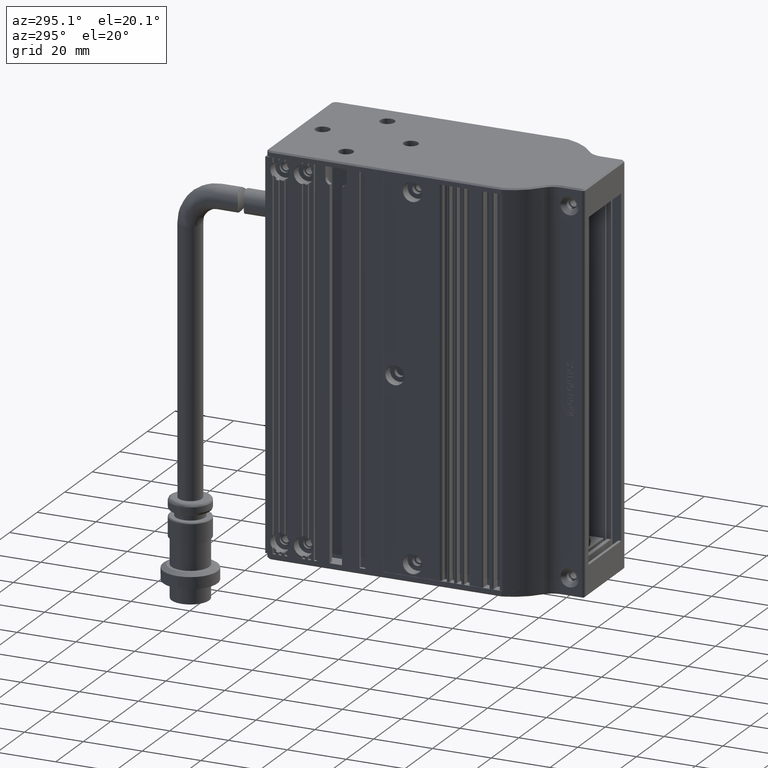
[diagram: clean part render]
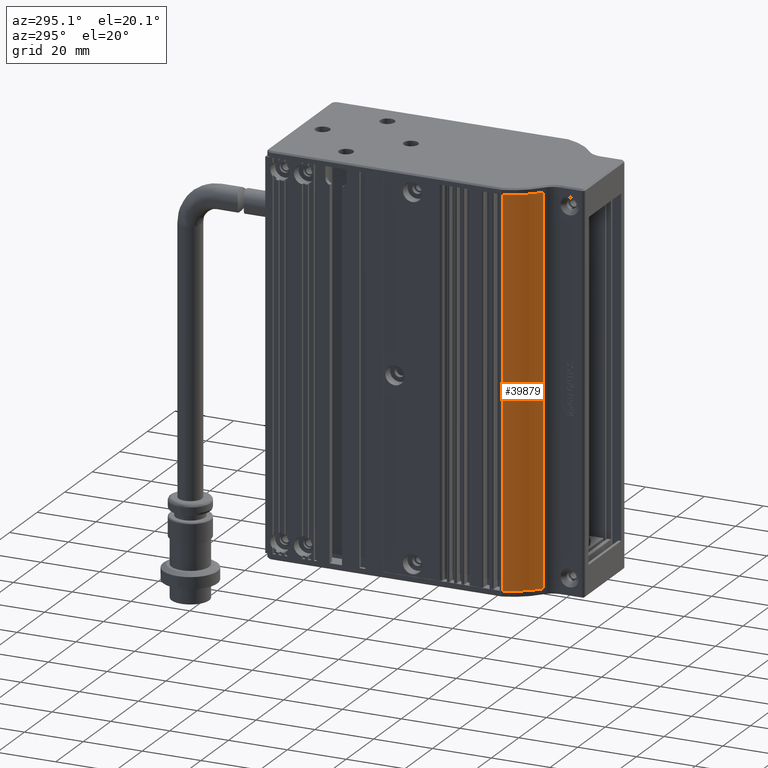
[diagram: same view with one face highlighted and labeled with its STEP entity id]
A machine part, auxiliary view. The second image highlights one B-rep face of the part: STEP entity #39879.
In plain terms, the highlighted cylindrical surface (partial cylindrical patch) has radius 20 mm, axis along (-0, -0, -1).
Its self-contained STEP definition (entity closure, byte-faithful):
#1405 = CARTESIAN_POINT ( 'NONE',  ( -61.96201180637543600, -36.56709289963590200, -65.00000000000000000 ) ) ;
#1498 = CARTESIAN_POINT ( 'NONE',  ( -42.68196710449178300, -31.24921021069212300, 65.00000000000000000 ) ) ;
#2821 = AXIS2_PLACEMENT_3D ( 'NONE', #23934, #23470, #68449 ) ;
#3785 = FACE_OUTER_BOUND ( 'NONE', #8132, .T. ) ;
#5009 = AXIS2_PLACEMENT_3D ( 'NONE', #1498, #40595, #29196 ) ;
#8132 = EDGE_LOOP ( 'NONE', ( #69304, #50638, #49167, #47361 ) ) ;
#8777 = VECTOR ( 'NONE', #43814, 1000.000000000000000 ) ;
#9837 = CARTESIAN_POINT ( 'NONE',  ( -42.68196710449178300, -31.24921021069212300, 65.00000000000000000 ) ) ;
#10083 = CARTESIAN_POINT ( 'NONE',  ( -54.82046302901767400, -47.14439554117092300, 65.00000000000000000 ) ) ;
#10410 = VERTEX_POINT ( 'NONE', #1405 ) ;
#15097 = CARTESIAN_POINT ( 'NONE',  ( -54.82046302901767400, -47.14439554117092300, 65.00000000000000000 ) ) ;
#17435 = EDGE_CURVE ( 'NONE', #10410, #71930, #26810, .T. ) ;
#20996 = DIRECTION ( 'NONE',  ( 0.0000000000000000000, 0.0000000000000000000, 1.000000000000000000 ) ) ;
#23470 = DIRECTION ( 'NONE',  ( 0.0000000000000000000, 0.0000000000000000000, 1.000000000000000000 ) ) ;
#23934 = CARTESIAN_POINT ( 'NONE',  ( -42.68196710449178300, -31.24921021069212300, -65.00000000000000000 ) ) ;
#26810 = CIRCLE ( 'NONE', #2821, 19.99999999999999600 ) ;
#29196 = DIRECTION ( 'NONE',  ( -1.000000000000000000, 0.0000000000000000000, 0.0000000000000000000 ) ) ;
#32638 = EDGE_CURVE ( 'NONE', #47391, #64406, #59604, .T. ) ;
#32910 = VECTOR ( 'NONE', #20996, 1000.000000000000000 ) ;
#37551 = DIRECTION ( 'NONE',  ( -1.000000000000000000, 0.0000000000000000000, 0.0000000000000000000 ) ) ;
#39879 = ADVANCED_FACE ( 'NONE', ( #3785 ), #46339, .T. ) ;
#40595 = DIRECTION ( 'NONE',  ( -0.0000000000000000000, -0.0000000000000000000, -1.000000000000000000 ) ) ;
#43814 = DIRECTION ( 'NONE',  ( -0.0000000000000000000, -0.0000000000000000000, -1.000000000000000000 ) ) ;
#46339 = CYLINDRICAL_SURFACE ( 'NONE', #5009, 19.99999999999999600 ) ;
#47361 = ORIENTED_EDGE ( 'NONE', *, *, #63350, .T. ) ;
#47391 = VERTEX_POINT ( 'NONE', #70390 ) ;
#48487 = AXIS2_PLACEMENT_3D ( 'NONE', #9837, #71809, #37551 ) ;
#48700 = LINE ( 'NONE', #50337, #8777 ) ;
#49167 = ORIENTED_EDGE ( 'NONE', *, *, #17435, .T. ) ;
#50337 = CARTESIAN_POINT ( 'NONE',  ( -61.96201180637543600, -36.56709289963590900, 65.00000000000000000 ) ) ;
#50638 = ORIENTED_EDGE ( 'NONE', *, *, #57932, .T. ) ;
#57932 = EDGE_CURVE ( 'NONE', #47391, #10410, #48700, .T. ) ;
#59604 = CIRCLE ( 'NONE', #48487, 19.99999999999999600 ) ;
#63350 = EDGE_CURVE ( 'NONE', #71930, #64406, #65032, .T. ) ;
#64406 = VERTEX_POINT ( 'NONE', #15097 ) ;
#65032 = LINE ( 'NONE', #10083, #32910 ) ;
#68449 = DIRECTION ( 'NONE',  ( -1.000000000000000000, 0.0000000000000000000, 0.0000000000000000000 ) ) ;
#69304 = ORIENTED_EDGE ( 'NONE', *, *, #32638, .F. ) ;
#70390 = CARTESIAN_POINT ( 'NONE',  ( -61.96201180637543600, -36.56709289963590200, 65.00000000000000000 ) ) ;
#70777 = CARTESIAN_POINT ( 'NONE',  ( -54.82046302901767400, -47.14439554117092300, -65.00000000000000000 ) ) ;
#71809 = DIRECTION ( 'NONE',  ( 0.0000000000000000000, 0.0000000000000000000, 1.000000000000000000 ) ) ;
#71930 = VERTEX_POINT ( 'NONE', #70777 ) ;